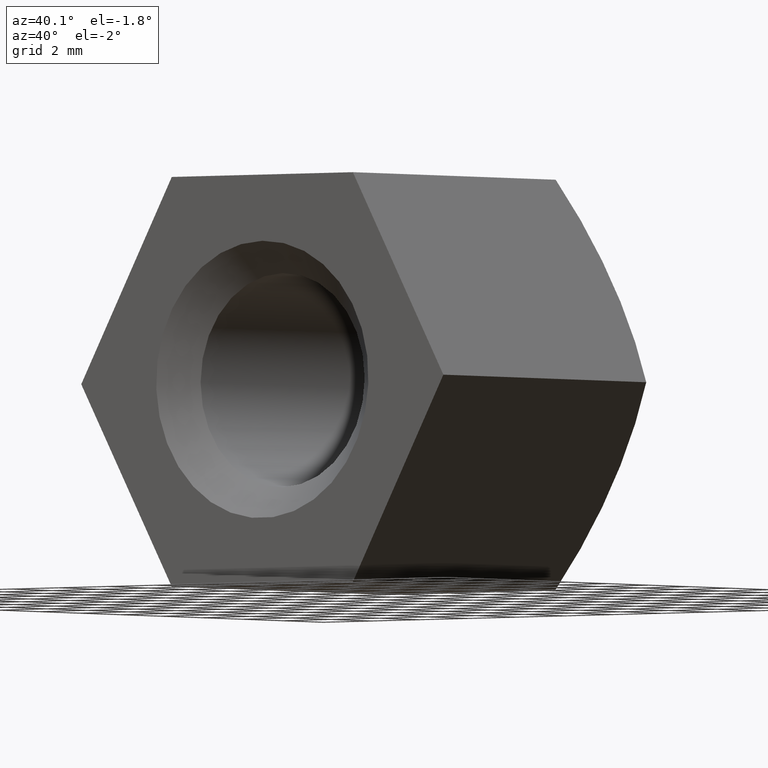
[diagram: clean part render]
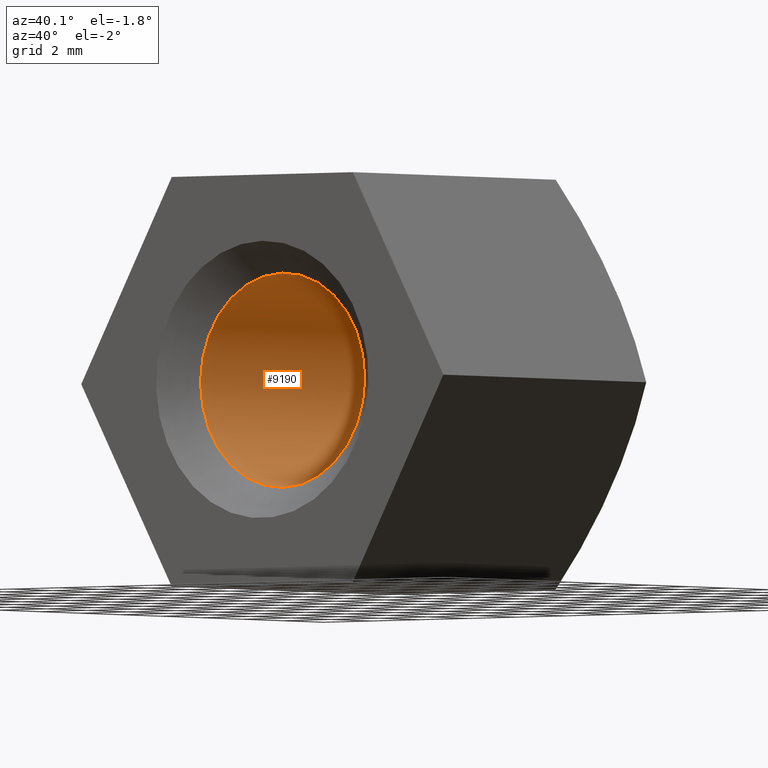
[diagram: same view with one face highlighted and labeled with its STEP entity id]
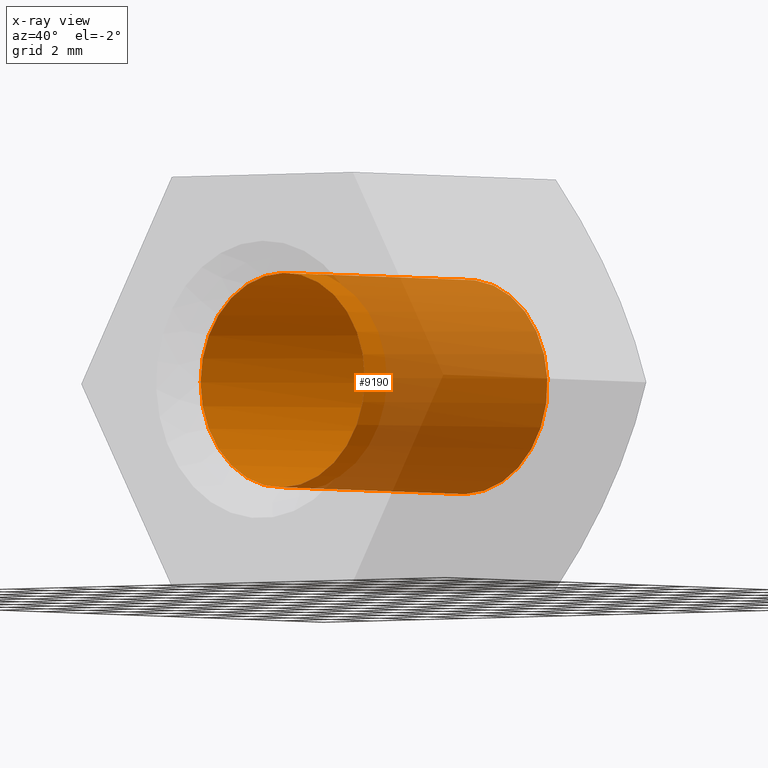
[diagram: x-ray of the same camera — body ghosted, the highlighted face saturated]
A machine part, auxiliary view. The second image highlights one B-rep face of the part: STEP entity #9190.
The next image is the same camera in x-ray: the body ghosted, the highlighted face saturated — about 52% of this face is hidden behind the body in this view.
In plain terms, the highlighted cylindrical surface (bore or boss wall) has radius 3.4 mm, axis along (-0, -1, -0).
Its self-contained STEP definition (entity closure, byte-faithful):
#10 = EDGE_CURVE ( 'NONE', #737, #737, #9766, .T. ) ;
#365 = DIRECTION ( 'NONE',  ( 0.000000000000000000, 0.000000000000000000, -1.000000000000000000 ) ) ;
#456 = FACE_OUTER_BOUND ( 'NONE', #8595, .T. ) ;
#737 = VERTEX_POINT ( 'NONE', #2729 ) ;
#991 = DIRECTION ( 'NONE',  ( 0.000000000000000000, 0.000000000000000000, 1.000000000000000000 ) ) ;
#1006 = ORIENTED_EDGE ( 'NONE', *, *, #10, .F. ) ;
#1373 = CARTESIAN_POINT ( 'NONE',  ( 0.000000000000000000, 1.000000000000001776, 3.399999999999997247 ) ) ;
#1400 = ORIENTED_EDGE ( 'NONE', *, *, #13097, .T. ) ;
#2729 = CARTESIAN_POINT ( 'NONE',  ( 0.000000000000000000, 10.00000000000000000, -3.399999999999995914 ) ) ;
#3313 = DIRECTION ( 'NONE',  ( 0.000000000000000000, -1.000000000000000000, 0.000000000000000000 ) ) ;
#5325 = CYLINDRICAL_SURFACE ( 'NONE', #12053, 3.399999999999997247 ) ;
#5536 = AXIS2_PLACEMENT_3D ( 'NONE', #12913, #9524, #365 ) ;
#5929 = EDGE_LOOP ( 'NONE', ( #1006 ) ) ;
#7919 = AXIS2_PLACEMENT_3D ( 'NONE', #12135, #3313, #991 ) ;
#8595 = EDGE_LOOP ( 'NONE', ( #1400 ) ) ;
#9190 = ADVANCED_FACE ( 'NONE', ( #456, #12727 ), #5325, .F. ) ;
#9524 = DIRECTION ( 'NONE',  ( -0.000000000000000000, -1.000000000000000000, -0.000000000000000000 ) ) ;
#9766 = CIRCLE ( 'NONE', #5536, 3.399999999999995914 ) ;
#12053 = AXIS2_PLACEMENT_3D ( 'NONE', #12596, #13763, #12790 ) ;
#12135 = CARTESIAN_POINT ( 'NONE',  ( 0.000000000000000000, 1.000000000000001776, 0.000000000000000000 ) ) ;
#12494 = CIRCLE ( 'NONE', #7919, 3.399999999999997247 ) ;
#12596 = CARTESIAN_POINT ( 'NONE',  ( 0.000000000000000000, 0.000000000000000000, 0.000000000000000000 ) ) ;
#12727 = FACE_OUTER_BOUND ( 'NONE', #5929, .T. ) ;
#12790 = DIRECTION ( 'NONE',  ( 0.000000000000000000, 0.000000000000000000, -1.000000000000000000 ) ) ;
#12913 = CARTESIAN_POINT ( 'NONE',  ( 0.000000000000000000, 10.00000000000000000, 0.000000000000000000 ) ) ;
#13097 = EDGE_CURVE ( 'NONE', #13368, #13368, #12494, .T. ) ;
#13368 = VERTEX_POINT ( 'NONE', #1373 ) ;
#13763 = DIRECTION ( 'NONE',  ( -0.000000000000000000, -1.000000000000000000, -0.000000000000000000 ) ) ;